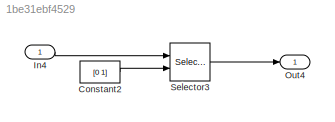
MODEL slx_1be31ebf4529
KIND model
CONFIG AbsTol = auto
CONFIG EnableMultiTasking = on
CONFIG FixedStep = 0.1
CONFIG MaxStep = 1
CONFIG MinStep = auto
CONFIG RelTol = 1e-3
CONFIG SampleTimeConstraint = Unconstrained
CONFIG Solver = FixedStepAuto
CONFIG SolverName = FixedStepAuto
CONFIG StartTime = 0.0
CONFIG StopTime = 0
BLOCK [Constant] Constant2
  Value = [0 1]
BLOCK [Inport] In4
  IconDisplay = Port number
  PortDimensions = [2 3]
BLOCK [Outport] Out4
  IconDisplay = Port number
BLOCK [Selector] Selector3
  IndexMode = Zero-based
  IndexOptions = Index vector (port),Index vector (dialog)
  Indices = [1 0],1
  InputPortWidth = 3
  NumberOfDimensions = 2
  OutputSizes = 1,2
  Ports = [2, 1]
LINE Constant2:1 -> Selector3:2
LINE In4:1 -> Selector3:1
LINE Selector3:1 -> Out4:1
